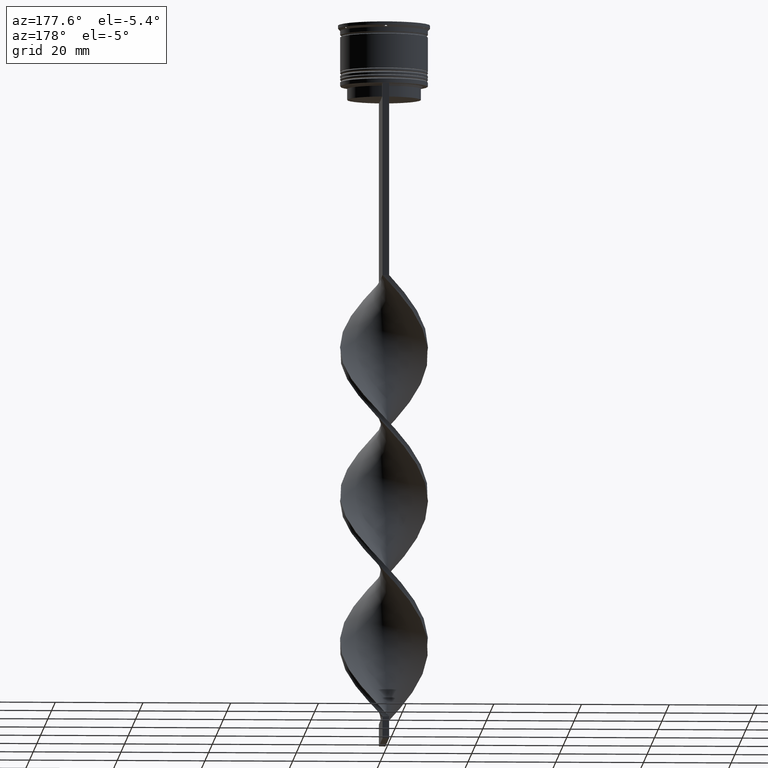
[diagram: clean part render]
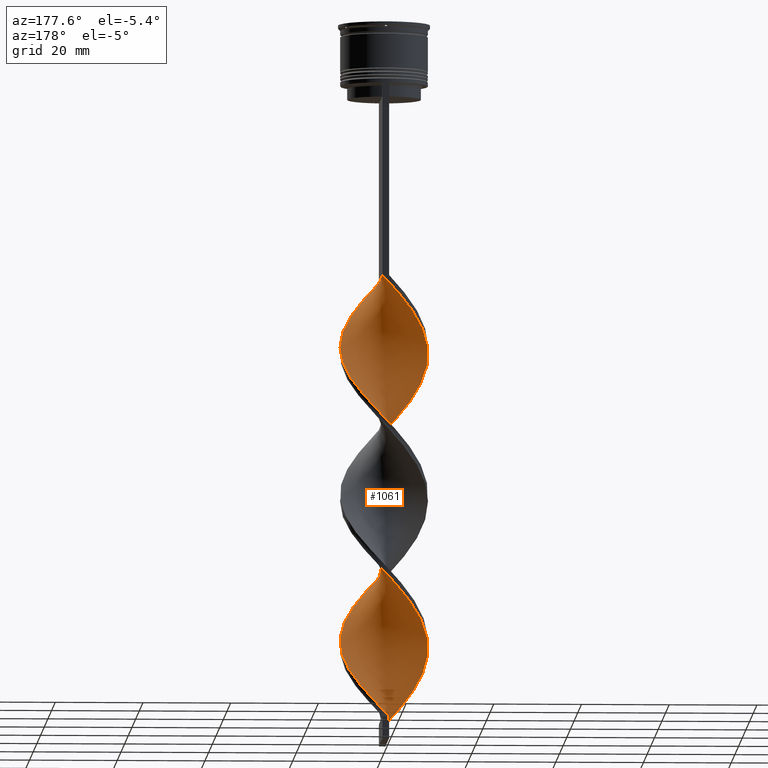
[diagram: same view with one face highlighted and labeled with its STEP entity id]
A machine part, auxiliary view. The second image highlights one B-rep face of the part: STEP entity #1061.
In plain terms, the highlighted face is a freeform B-spline surface patch.
Its self-contained STEP definition (entity closure, byte-faithful):
#10 = CARTESIAN_POINT ( 'NONE',  ( 9.866822606231998805, 1.791176054202738843, -75.95555555555554861 ) ) ;
#18 = CARTESIAN_POINT ( 'NONE',  ( 0.3010423526567601038, -10.07882817644925844, -92.78888888888889142 ) ) ;
#19 = CARTESIAN_POINT ( 'NONE',  ( -7.933296209543087230, -6.133947444480532418, -150.0222222222222115 ) ) ;
#30 = CARTESIAN_POINT ( 'NONE',  ( 3.382207337526056179, 9.440507058732862333, -87.17777777777779136 ) ) ;
#38 = CARTESIAN_POINT ( 'NONE',  ( 3.824412864799132450, 9.329912654898729230, -121.9666666666666544 ) ) ;
#49 = CARTESIAN_POINT ( 'NONE',  ( 9.035254037844390851, -4.350480947161673662, -69.22222222222222854 ) ) ;
#90 = CARTESIAN_POINT ( 'NONE',  ( 3.824412864799132006, -9.329912654898736335, -61.36666666666666003 ) ) ;
#107 = CARTESIAN_POINT ( 'NONE',  ( -10.05508279563516005, 0.7541312096726381364, -74.83333333333334281 ) ) ;
#108 = CARTESIAN_POINT ( 'NONE',  ( 7.933296209543089006, -6.133947444480539524, -66.97777777777777430 ) ) ;
#110 = CARTESIAN_POINT ( 'NONE',  ( 8.578000064855070050, -5.300124413240424381, -135.4333333333333371 ) ) ;
#127 = CARTESIAN_POINT ( 'NONE',  ( 2.812727608727948247, -9.625542239224740726, -127.5777777777777828 ) ) ;
#129 = CARTESIAN_POINT ( 'NONE',  ( -5.680638183180775513, 8.330891533339592314, -97.27777777777779988 ) ) ;
#151 = CARTESIAN_POINT ( 'NONE',  ( -9.678562416828828674, -2.828220898732835220, -110.7444444444444542 ) ) ;
#153 = CARTESIAN_POINT ( 'NONE',  ( 2.389970062597715827, 9.795991374453498324, -155.6333333333333542 ) ) ;
#165 = CARTESIAN_POINT ( 'NONE',  ( -10.02361530113348032, 0.2993932111503379012, -107.3777777777777942 ) ) ;
#167 = CARTESIAN_POINT ( 'NONE',  ( -9.742327908732750785, 2.376877556528111946, -105.1333333333333400 ) ) ;
#175 = CARTESIAN_POINT ( 'NONE',  ( 5.271089777143518340, -8.531008882968830420, -98.40000000000001990 ) ) ;
#181 = CARTESIAN_POINT ( 'NONE',  ( 4.374444612454393422, 9.085022743012228119, -153.3888888888889142 ) ) ;
#183 = CARTESIAN_POINT ( 'NONE',  ( -8.285254037844394404, -5.649519052838325450, -114.1111111111111285 ) ) ;
#215 = CARTESIAN_POINT ( 'NONE',  ( -6.484615268705941737, -7.649331004530116829, -84.93333333333333712 ) ) ;
#232 = CARTESIAN_POINT ( 'NONE',  ( -5.271089777143520116, 8.531008882968830420, -64.73333333333333428 ) ) ;
#250 = CARTESIAN_POINT ( 'NONE',  ( 9.035254037844389075, 4.350480947161663003, -114.1111111111111285 ) ) ;
#251 = CARTESIAN_POINT ( 'NONE',  ( -9.035254037844387298, -4.350480947161667444, -80.44444444444445708 ) ) ;
#272 = CARTESIAN_POINT ( 'NONE',  ( -6.484615268705941737, -7.649331004530116829, -152.2666666666666799 ) ) ;
#273 = CARTESIAN_POINT ( 'NONE',  ( 1.801042352656772927, 9.921171823550741564, -124.2111111111111370 ) ) ;
#290 = CARTESIAN_POINT ( 'NONE',  ( 7.933296209543087230, 6.133947444480531530, -116.3555555555555685 ) ) ;
#291 = CARTESIAN_POINT ( 'NONE',  ( -9.992147806631782814, -1.352917631973294288, -144.4111111111111256 ) ) ;
#293 = CARTESIAN_POINT ( 'NONE',  ( -0.7499999999999988898, 10.00000000000000533, -159.0000000000000000 ) ) ;
#309 = CARTESIAN_POINT ( 'NONE',  ( -0.3010423526567642116, 10.07882817644925666, -126.4555555555555628 ) ) ;
#322 = CARTESIAN_POINT ( 'NONE',  ( 6.167734941832656581, 7.976995022925434498, -83.81111111111111711 ) ) ;
#332 = CARTESIAN_POINT ( 'NONE',  ( -9.678562416828818016, 2.828220898732842770, -139.9222222222222172 ) ) ;
#333 = CARTESIAN_POINT ( 'NONE',  ( -10.05508279563516005, 0.7541312096726382475, -142.1666666666666856 ) ) ;
#342 = CARTESIAN_POINT ( 'NONE',  ( -5.271089777143520116, 8.531008882968830420, -64.73333333333333428 ) ) ;
#345 = CARTESIAN_POINT ( 'NONE',  ( 3.824412864799132006, -9.329912654898734559, -61.36666666666666003 ) ) ;
#360 = CARTESIAN_POINT ( 'NONE',  ( -7.933296209543087230, -6.133947444480532418, -82.68888888888889710 ) ) ;
#362 = CARTESIAN_POINT ( 'NONE',  ( 1.345506207627244155, 9.937409775451381932, -89.42222222222223138 ) ) ;
#379 = CARTESIAN_POINT ( 'NONE',  ( -8.879042417511827878, 4.778703763208837607, -70.34444444444443434 ) ) ;
#381 = CARTESIAN_POINT ( 'NONE',  ( 9.742327908732750785, -2.376877556528111057, -71.46666666666668277 ) ) ;
#392 =( BOUNDED_CURVE ( )  B_SPLINE_CURVE ( 2, ( #3080, #3352, #2452, #345, #1901, #3118, #2774, #3669, #3055, #2731, #49, #2433, #381, #1006, #2755, #1526, #10, #1258, #2473, #970, #2184, #663, #1218, #322, #3647, #1547, #30, #3099, #362, #2855, #1104, #2313, #702, #2278, #1381, #129, #741, #2261, #1925, #3472, #463, #2593, #167, #1401, #3805, #1628, #1341, #724, #3138, #1082, #183, #1064, #779, #3173, #3789, #2534, #2294, #2611, #3489, #3827, #3511, #1320, #406, #1684, #2555, #2003, #3771, #2836, #3212, #110, #1945, #1662, #1048, #2912, #3157, #757, #479, #1962, #1701, #3749, #443, #2875, #1025, #2243, #3456, #424, #1644, #153, #1364, #2575, #1983 ),
 .UNSPECIFIED., .F., .F. ) 
 B_SPLINE_CURVE_WITH_KNOTS ( ( 3, 2, 2, 2, 2, 2, 2, 2, 2, 2, 2, 2, 2, 2, 2, 2, 2, 2, 2, 2, 2, 2, 2, 2, 2, 2, 2, 2, 2, 2, 2, 2, 2, 2, 2, 2, 2, 2, 2, 2, 2, 2, 2, 2, 2, 3 ),
 ( 0.000000000000000000, 0.01666666666666666644, 0.03333333333333333287, 0.05000000000000000971, 0.06666666666666666574, 0.08333333333333332871, 0.1000000000000000194, 0.1166666666666666546, 0.1333333333333333315, 0.1499999999999999944, 0.1666666666666666574, 0.1833333333333333204, 0.2000000000000000389, 0.2166666666666666741, 0.2333333333333333093, 0.2500000000000000000, 0.2666666666666666630, 0.2833333333333333259, 0.2999999999999999889, 0.3166666666666666519, 0.3333333333333333148, 0.3499999999999999223, 0.3666666666666666408, 0.3833333333333333592, 0.4000000000000000777, 0.4166666666666666852, 0.4333333333333333481, 0.4500000000000000111, 0.4666666666666666186, 0.4833333333333333370, 0.5000000000000000000, 0.5166666666666667185, 0.5333333333333333259, 0.5500000000000000444, 0.5666666666666666519, 0.5833333333333333703, 0.5999999999999999778, 0.6166666666666666963, 0.6333333333333333037, 0.6500000000000000222, 0.6666666666666666297, 0.6833333333333332371, 0.6999999999999998446, 0.7166666666666666741, 0.7333333333333332815, 0.7500000000000000000 ),
 .UNSPECIFIED. ) 
 CURVE ( )  GEOMETRIC_REPRESENTATION_ITEM ( )  RATIONAL_B_SPLINE_CURVE ( ( 1.000000000000000000, 0.9945218953682732899, 1.000000000000000000, 0.9945218953682732899, 1.000000000000000000, 0.9945218953682732899, 1.000000000000000000, 0.9945218953682732899, 1.000000000000000000, 0.9945218953682732899, 1.000000000000000000, 0.9945218953682732899, 1.000000000000000000, 0.9945218953682732899, 1.000000000000000000, 0.9945218953682732899, 1.000000000000000000, 0.9945218953682732899, 1.000000000000000000, 0.9945218953682732899, 1.000000000000000000, 0.9945218953682732899, 1.000000000000000000, 0.9945218953682732899, 1.000000000000000000, 0.9945218953682732899, 1.000000000000000000, 0.9945218953682732899, 1.000000000000000000, 0.9945218953682732899, 1.000000000000000000, 0.9945218953682732899, 1.000000000000000000, 0.9945218953682732899, 1.000000000000000000, 0.9945218953682732899, 1.000000000000000000, 0.9945218953682732899, 1.000000000000000000, 0.9945218953682732899, 1.000000000000000000, 0.9945218953682732899, 1.000000000000000000, 0.9945218953682732899, 1.000000000000000000, 0.9945218953682732899, 1.000000000000000000, 0.9945218953682732899, 1.000000000000000000, 0.9945218953682732899, 1.000000000000000000, 0.9945218953682732899, 1.000000000000000000, 0.9945218953682732899, 1.000000000000000000, 0.9945218953682732899, 1.000000000000000000, 0.9945218953682732899, 1.000000000000000000, 0.9945218953682732899, 1.000000000000000000, 0.9945218953682732899, 1.000000000000000000, 0.9945218953682732899, 1.000000000000000000, 0.9945218953682732899, 1.000000000000000000, 0.9945218953682732899, 1.000000000000000000, 0.9945218953682732899, 1.000000000000000000, 0.9945218953682732899, 1.000000000000000000, 0.9945218953682732899, 1.000000000000000000, 0.9945218953682732899, 1.000000000000000000, 0.9945218953682732899, 1.000000000000000000, 0.9945218953682732899, 1.000000000000000000, 0.9945218953682732899, 1.000000000000000000, 0.9945218953682732899, 1.000000000000000000, 0.9945218953682732899, 1.000000000000000000, 0.9945218953682732899, 1.000000000000000000, 0.9945218953682732899, 1.000000000000000000 ) ) 
 REPRESENTATION_ITEM ( '' )  );
#404 = CARTESIAN_POINT ( 'NONE',  ( -7.691465658176951159, -6.520334342467823063, -115.2333333333333343 ) ) ;
#406 = CARTESIAN_POINT ( 'NONE',  ( 2.812727608727948247, -9.625542239224740726, -127.5777777777777828 ) ) ;
#414 = CARTESIAN_POINT ( 'NONE',  ( 0.7500000000000002220, 9.999999999999998224, -58.00000000000000000 ) ) ;
#421 = CARTESIAN_POINT ( 'NONE',  ( -0.3010423526567735375, -10.07882817644926376, -124.2111111111111370 ) ) ;
#424 = CARTESIAN_POINT ( 'NONE',  ( 4.374444612454394310, 9.085022743012228119, -153.3888888888889142 ) ) ;
#441 = CARTESIAN_POINT ( 'NONE',  ( 5.680638183180777290, -8.330891533339590538, -63.61111111111111427 ) ) ;
#443 = CARTESIAN_POINT ( 'NONE',  ( 8.285254037844390851, 5.649519052838329891, -147.7777777777777715 ) ) ;
#451 = CARTESIAN_POINT ( 'NONE',  ( 0.7500000000000001110, -10.00000000000000533, -58.00000000000000000 ) ) ;
#461 = CARTESIAN_POINT ( 'NONE',  ( 0.3010423526567679309, 10.07882817644926376, -90.54444444444445139 ) ) ;
#463 = CARTESIAN_POINT ( 'NONE',  ( -9.035254037844390851, 4.350480947161678102, -102.8888888888888857 ) ) ;
#472 = CARTESIAN_POINT ( 'NONE',  ( -9.678562416828818016, 2.828220898732843214, -72.58888888888890278 ) ) ;
#477 = CARTESIAN_POINT ( 'NONE',  ( 4.752525523989954870, -8.830402094119163436, -62.48888888888889426 ) ) ;
#479 = CARTESIAN_POINT ( 'NONE',  ( 9.866822606231998805, 1.791176054202738843, -143.2888888888889198 ) ) ;
#488 = CARTESIAN_POINT ( 'NONE',  ( 1.345506207627235717, -9.937409775451374827, -93.91111111111111143 ) ) ;
#507 = CARTESIAN_POINT ( 'NONE',  ( -1.801042352656767154, -9.921171823550741564, -90.54444444444445139 ) ) ;
#514 =( BOUNDED_SURFACE ( )  B_SPLINE_SURFACE ( 1, 2, ( 
 ( #637, #1256, #3686, #2530, #1276, #1860, #342, #2833, #964, #2180, #1624, #379, #3097, #2493, #3708, #107, #3393, #660, #1581, #699, #1899, #986, #360, #2791, #1603, #3410, #678, #2814, #1002, #3278, #910, #18, #1493, #3321, #886, #547, #2111, #3043, #1769, #3359, #3635, #2978, #589, #1227, #627, #2150, #865, #1848, #3066, #1808, #250, #3019, #290, #3655, #1187, #2385, #2441, #38, #3893, #1168, #1473, #309, #1532, #929, #2087, #2401, #3298, #2741, #1513, #2684, #1555, #3595, #568, #332, #3613, #2763, #953, #1827, #1245, #2458, #1206, #3911, #1793, #3000, #272, #2130, #3676, #3340, #2700, #2718, #3930 ),
 ( #2420, #607, #2276, #90, #477, #441, #3431, #3210, #108, #3171, #3747, #777, #1298, #3727, #3487, #755, #3509, #1981, #1003, #3454, #2834, #2816, #3192, #2292, #1660, #2892, #1339, #1960, #700, #461, #2001, #2873, #2514, #1682, #2573, #2220, #3787, #739, #1062, #3155, #722, #1923, #2553, #3803, #165, #1023, #1626, #151, #3769, #3136, #1362, #404, #1318, #1379, #2532, #1642, #2591, #2241, #1943, #421, #1080, #2853, #127, #1046, #2259, #3470, #3246, #2632, #1439, #2910, #2095, #1699, #3880, #552, #3267, #2929, #2648, #515, #1157, #1422, #2311, #1759, #3303, #2016, #1399, #181, #2609, #794, #1458, #3584, #2949 ) ),
 .UNSPECIFIED., .F., .F., .F. ) 
 B_SPLINE_SURFACE_WITH_KNOTS ( ( 2, 2 ),
 ( 3, 2, 2, 2, 2, 2, 2, 2, 2, 2, 2, 2, 2, 2, 2, 2, 2, 2, 2, 2, 2, 2, 2, 2, 2, 2, 2, 2, 2, 2, 2, 2, 2, 2, 2, 2, 2, 2, 2, 2, 2, 2, 2, 2, 2, 3 ),
 ( 0.000000000000000000, 1.000000000000000000 ),
 ( 0.000000000000000000, 0.01666666666666666644, 0.03333333333333333287, 0.05000000000000000278, 0.06666666666666666574, 0.08333333333333332871, 0.1000000000000000056, 0.1166666666666666685, 0.1333333333333333315, 0.1499999999999999944, 0.1666666666666666574, 0.1833333333333333204, 0.2000000000000000111, 0.2166666666666666741, 0.2333333333333333370, 0.2500000000000000000, 0.2666666666666666630, 0.2833333333333333259, 0.2999999999999999889, 0.3166666666666666519, 0.3333333333333333148, 0.3499999999999999778, 0.3666666666666666408, 0.3833333333333333592, 0.4000000000000000222, 0.4166666666666666852, 0.4333333333333333481, 0.4500000000000000111, 0.4666666666666666741, 0.4833333333333333370, 0.5000000000000000000, 0.5166666666666667185, 0.5333333333333333259, 0.5500000000000000444, 0.5666666666666666519, 0.5833333333333333703, 0.5999999999999999778, 0.6166666666666666963, 0.6333333333333333037, 0.6500000000000000222, 0.6666666666666666297, 0.6833333333333333481, 0.6999999999999999556, 0.7166666666666666741, 0.7333333333333332815, 0.7500000000000000000 ),
 .UNSPECIFIED. ) 
 GEOMETRIC_REPRESENTATION_ITEM ( )  RATIONAL_B_SPLINE_SURFACE ( (
 ( 1.000000000000000000, 0.9945218953682732899, 1.000000000000000000, 0.9945218953682732899, 1.000000000000000000, 0.9945218953682732899, 1.000000000000000000, 0.9945218953682732899, 1.000000000000000000, 0.9945218953682732899, 1.000000000000000000, 0.9945218953682732899, 1.000000000000000000, 0.9945218953682732899, 1.000000000000000000, 0.9945218953682732899, 1.000000000000000000, 0.9945218953682732899, 1.000000000000000000, 0.9945218953682732899, 1.000000000000000000, 0.9945218953682732899, 1.000000000000000000, 0.9945218953682732899, 1.000000000000000000, 0.9945218953682732899, 1.000000000000000000, 0.9945218953682732899, 1.000000000000000000, 0.9945218953682732899, 1.000000000000000000, 0.9945218953682732899, 1.000000000000000000, 0.9945218953682732899, 1.000000000000000000, 0.9945218953682732899, 1.000000000000000000, 0.9945218953682732899, 1.000000000000000000, 0.9945218953682732899, 1.000000000000000000, 0.9945218953682732899, 1.000000000000000000, 0.9945218953682732899, 1.000000000000000000, 0.9945218953682732899, 1.000000000000000000, 0.9945218953682732899, 1.000000000000000000, 0.9945218953682732899, 1.000000000000000000, 0.9945218953682732899, 1.000000000000000000, 0.9945218953682732899, 1.000000000000000000, 0.9945218953682732899, 1.000000000000000000, 0.9945218953682732899, 1.000000000000000000, 0.9945218953682732899, 1.000000000000000000, 0.9945218953682732899, 1.000000000000000000, 0.9945218953682732899, 1.000000000000000000, 0.9945218953682732899, 1.000000000000000000, 0.9945218953682732899, 1.000000000000000000, 0.9945218953682732899, 1.000000000000000000, 0.9945218953682732899, 1.000000000000000000, 0.9945218953682732899, 1.000000000000000000, 0.9945218953682732899, 1.000000000000000000, 0.9945218953682732899, 1.000000000000000000, 0.9945218953682732899, 1.000000000000000000, 0.9945218953682732899, 1.000000000000000000, 0.9945218953682732899, 1.000000000000000000, 0.9945218953682732899, 1.000000000000000000, 0.9945218953682732899, 1.000000000000000000, 0.9945218953682732899, 1.000000000000000000),
 ( 1.000000000000000000, 0.9945218953682732899, 1.000000000000000000, 0.9945218953682732899, 1.000000000000000000, 0.9945218953682732899, 1.000000000000000000, 0.9945218953682732899, 1.000000000000000000, 0.9945218953682732899, 1.000000000000000000, 0.9945218953682732899, 1.000000000000000000, 0.9945218953682732899, 1.000000000000000000, 0.9945218953682732899, 1.000000000000000000, 0.9945218953682732899, 1.000000000000000000, 0.9945218953682732899, 1.000000000000000000, 0.9945218953682732899, 1.000000000000000000, 0.9945218953682732899, 1.000000000000000000, 0.9945218953682732899, 1.000000000000000000, 0.9945218953682732899, 1.000000000000000000, 0.9945218953682732899, 1.000000000000000000, 0.9945218953682732899, 1.000000000000000000, 0.9945218953682732899, 1.000000000000000000, 0.9945218953682732899, 1.000000000000000000, 0.9945218953682732899, 1.000000000000000000, 0.9945218953682732899, 1.000000000000000000, 0.9945218953682732899, 1.000000000000000000, 0.9945218953682732899, 1.000000000000000000, 0.9945218953682732899, 1.000000000000000000, 0.9945218953682732899, 1.000000000000000000, 0.9945218953682732899, 1.000000000000000000, 0.9945218953682732899, 1.000000000000000000, 0.9945218953682732899, 1.000000000000000000, 0.9945218953682732899, 1.000000000000000000, 0.9945218953682732899, 1.000000000000000000, 0.9945218953682732899, 1.000000000000000000, 0.9945218953682732899, 1.000000000000000000, 0.9945218953682732899, 1.000000000000000000, 0.9945218953682732899, 1.000000000000000000, 0.9945218953682732899, 1.000000000000000000, 0.9945218953682732899, 1.000000000000000000, 0.9945218953682732899, 1.000000000000000000, 0.9945218953682732899, 1.000000000000000000, 0.9945218953682732899, 1.000000000000000000, 0.9945218953682732899, 1.000000000000000000, 0.9945218953682732899, 1.000000000000000000, 0.9945218953682732899, 1.000000000000000000, 0.9945218953682732899, 1.000000000000000000, 0.9945218953682732899, 1.000000000000000000, 0.9945218953682732899, 1.000000000000000000, 0.9945218953682732899, 1.000000000000000000) ) ) 
 REPRESENTATION_ITEM ( '' )  SURFACE ( )  );
#515 = CARTESIAN_POINT ( 'NONE',  ( 9.678562416828826898, 2.828220898732840549, -144.4111111111111541 ) ) ;
#547 = CARTESIAN_POINT ( 'NONE',  ( 4.374444612454384540, -9.085022743012224566, -97.27777777777778567 ) ) ;
#548 = CARTESIAN_POINT ( 'NONE',  ( -5.680638183180776402, -8.330891533339583432, -86.05555555555557135 ) ) ;
#552 = CARTESIAN_POINT ( 'NONE',  ( 9.992147806631789919, -1.352917631973299173, -139.9222222222222172 ) ) ;
#568 = CARTESIAN_POINT ( 'NONE',  ( -9.278802417170323835, 3.803462330970839300, -138.8000000000000114 ) ) ;
#589 = CARTESIAN_POINT ( 'NONE',  ( 9.278802417170323835, -3.803462330970840188, -105.1333333333333400 ) ) ;
#590 = CARTESIAN_POINT ( 'NONE',  ( -9.492508010833709875, -3.400837481082919389, -146.6555555555555657 ) ) ;
#607 = CARTESIAN_POINT ( 'NONE',  ( 1.801042352656765155, -9.921171823550746893, -59.12222222222222712 ) ) ;
#608 = CARTESIAN_POINT ( 'NONE',  ( -9.035254037844387298, -4.350480947161667444, -147.7777777777777715 ) ) ;
#627 = CARTESIAN_POINT ( 'NONE',  ( 9.866822606231989923, -1.791176054202747281, -107.3777777777777942 ) ) ;
#628 = CARTESIAN_POINT ( 'NONE',  ( -3.382207337526049518, 9.440507058732857004, -129.8222222222222229 ) ) ;
#637 = CARTESIAN_POINT ( 'NONE',  ( 0.7500000000000001110, 9.999999999999998224, -58.00000000000000000 ) ) ;
#660 = CARTESIAN_POINT ( 'NONE',  ( -9.992147806631782814, -1.352917631973294510, -77.07777777777778283 ) ) ;
#663 = CARTESIAN_POINT ( 'NONE',  ( 7.691465658176951159, 6.520334342467823951, -81.56666666666666288 ) ) ;
#678 = CARTESIAN_POINT ( 'NONE',  ( -4.752525523989953982, -8.830402094119154555, -87.17777777777779136 ) ) ;
#699 = CARTESIAN_POINT ( 'NONE',  ( -9.492508010833708099, -3.400837481082919389, -79.32222222222222285 ) ) ;
#700 = CARTESIAN_POINT ( 'NONE',  ( 1.345506207627244155, 9.937409775451381932, -89.42222222222223138 ) ) ;
#702 = CARTESIAN_POINT ( 'NONE',  ( -2.812727608727946027, 9.625542239224740726, -93.91111111111111143 ) ) ;
#709 = EDGE_CURVE ( 'NONE', #1024, #2038, #3188, .T. ) ;
#722 = CARTESIAN_POINT ( 'NONE',  ( -9.035254037844390851, 4.350480947161678102, -102.8888888888888857 ) ) ;
#724 = CARTESIAN_POINT ( 'NONE',  ( -9.678562416828830450, -2.828220898732835220, -110.7444444444444542 ) ) ;
#739 = CARTESIAN_POINT ( 'NONE',  ( -7.288592354231109738, 6.967770475720659107, -99.52222222222223991 ) ) ;
#741 = CARTESIAN_POINT ( 'NONE',  ( -6.484615268705943514, 7.649331004530123934, -98.40000000000001990 ) ) ;
#755 = CARTESIAN_POINT ( 'NONE',  ( 10.05508279563516716, 0.7541312096726368042, -74.83333333333334281 ) ) ;
#757 = CARTESIAN_POINT ( 'NONE',  ( 10.05508279563516716, 0.7541312096726368042, -142.1666666666666856 ) ) ;
#770 = CARTESIAN_POINT ( 'NONE',  ( -0.3010423526567641006, 10.07882817644925666, -59.12222222222222712 ) ) ;
#777 = CARTESIAN_POINT ( 'NONE',  ( 9.492508010833713428, -3.400837481082924718, -70.34444444444443434 ) ) ;
#779 = CARTESIAN_POINT ( 'NONE',  ( -6.929600300004805646, -7.248664682696627892, -116.3555555555555685 ) ) ;
#789 = CARTESIAN_POINT ( 'NONE',  ( 9.992147806631784590, 1.352917631973288071, -110.7444444444444542 ) ) ;
#794 = CARTESIAN_POINT ( 'NONE',  ( 2.389970062597715827, 9.795991374453498324, -155.6333333333333258 ) ) ;
#828 = CARTESIAN_POINT ( 'NONE',  ( 7.933296209543087230, 6.133947444480531530, -116.3555555555555685 ) ) ;
#849 = CARTESIAN_POINT ( 'NONE',  ( -8.285254037844383745, 5.649519052838329891, -69.22222222222222854 ) ) ;
#865 = CARTESIAN_POINT ( 'NONE',  ( 10.02361530113347143, 0.2993932111503245785, -109.6222222222222342 ) ) ;
#866 = CARTESIAN_POINT ( 'NONE',  ( -8.285254037844383745, 5.649519052838329891, -136.5555555555555713 ) ) ;
#886 = CARTESIAN_POINT ( 'NONE',  ( 3.382207337526045965, -9.440507058732858781, -96.15555555555556566 ) ) ;
#888 = CARTESIAN_POINT ( 'NONE',  ( -4.374444612454386316, 9.085022743012224566, -130.9444444444444571 ) ) ;
#910 = CARTESIAN_POINT ( 'NONE',  ( -0.7500000000000013323, -9.999999999999998224, -91.66666666666667140 ) ) ;
#911 = CARTESIAN_POINT ( 'NONE',  ( -1.345506207627238382, 9.937409775451374827, -127.5777777777777828 ) ) ;
#929 = CARTESIAN_POINT ( 'NONE',  ( -2.389970062597713163, 9.795991374453491218, -128.6999999999999886 ) ) ;
#930 = CARTESIAN_POINT ( 'NONE',  ( -9.866822606231991699, 1.791176054202741952, -141.0444444444444514 ) ) ;
#953 = CARTESIAN_POINT ( 'NONE',  ( -10.02361530113347143, -0.2993932111503280202, -143.2888888888889198 ) ) ;
#964 = CARTESIAN_POINT ( 'NONE',  ( -6.929600300004796765, 7.248664682696627892, -66.97777777777777430 ) ) ;
#970 = CARTESIAN_POINT ( 'NONE',  ( 8.879042417511834984, 4.778703763208838495, -79.32222222222222285 ) ) ;
#986 = CARTESIAN_POINT ( 'NONE',  ( -8.578000064855064721, -5.300124413240419052, -81.56666666666664867 ) ) ;
#1002 = CARTESIAN_POINT ( 'NONE',  ( -2.812727608727951356, -9.625542239224735397, -89.42222222222223138 ) ) ;
#1003 = CARTESIAN_POINT ( 'NONE',  ( 9.278802417170330941, 3.803462330970840632, -78.20000000000000284 ) ) ;
#1006 = CARTESIAN_POINT ( 'NONE',  ( 9.992147806631788143, -1.352917631973299173, -72.58888888888890278 ) ) ;
#1022 = CARTESIAN_POINT ( 'NONE',  ( -0.7500000000000014433, -9.999999999999998224, -159.0000000000000000 ) ) ;
#1023 = CARTESIAN_POINT ( 'NONE',  ( -10.05508279563516716, -0.7541312096726356939, -108.5000000000000000 ) ) ;
#1024 = VERTEX_POINT ( 'NONE', #1022 ) ;
#1025 = CARTESIAN_POINT ( 'NONE',  ( 6.929600300004804758, 7.248664682696628780, -150.0222222222222115 ) ) ;
#1046 = CARTESIAN_POINT ( 'NONE',  ( 3.824412864799132006, -9.329912654898736335, -128.6999999999999886 ) ) ;
#1048 = CARTESIAN_POINT ( 'NONE',  ( 9.742327908732750785, -2.376877556528111057, -138.8000000000000114 ) ) ;
#1061 = ADVANCED_FACE ( 'NONE', ( #1315 ), #514, .T. ) ;
#1062 = CARTESIAN_POINT ( 'NONE',  ( -7.933296209543089006, 6.133947444480543076, -100.6444444444444599 ) ) ;
#1064 = CARTESIAN_POINT ( 'NONE',  ( -7.691465658176951159, -6.520334342467823063, -115.2333333333333343 ) ) ;
#1080 = CARTESIAN_POINT ( 'NONE',  ( 0.7500000000000001110, -10.00000000000000533, -125.3333333333333570 ) ) ;
#1082 = CARTESIAN_POINT ( 'NONE',  ( -8.879042417511836760, -4.778703763208834943, -112.9888888888888943 ) ) ;
#1083 = ORIENTED_EDGE ( 'NONE', *, *, #709, .F. ) ;
#1094 = CARTESIAN_POINT ( 'NONE',  ( 2.389970062597711831, -9.795991374453492995, -95.03333333333331723 ) ) ;
#1104 = CARTESIAN_POINT ( 'NONE',  ( -0.7499999999999988898, 10.00000000000000533, -91.66666666666667140 ) ) ;
#1113 = CARTESIAN_POINT ( 'NONE',  ( -9.278802417170323835, 3.803462330970839744, -71.46666666666668277 ) ) ;
#1114 = ORIENTED_EDGE ( 'NONE', *, *, #1748, .F. ) ;
#1131 = CARTESIAN_POINT ( 'NONE',  ( 8.578000064855064721, 5.300124413240417276, -115.2333333333333343 ) ) ;
#1149 = CARTESIAN_POINT ( 'NONE',  ( -6.929600300004796765, 7.248664682696627892, -66.97777777777777430 ) ) ;
#1157 = CARTESIAN_POINT ( 'NONE',  ( 9.278802417170330941, 3.803462330970840632, -145.5333333333333599 ) ) ;
#1168 = CARTESIAN_POINT ( 'NONE',  ( 1.801042352656772705, 9.921171823550739788, -124.2111111111111370 ) ) ;
#1169 = CARTESIAN_POINT ( 'NONE',  ( -7.288592354231108850, -6.967770475720649337, -151.1444444444444457 ) ) ;
#1187 = CARTESIAN_POINT ( 'NONE',  ( 6.484615268705942626, 7.649331004530116829, -118.6000000000000085 ) ) ;
#1188 = CARTESIAN_POINT ( 'NONE',  ( -4.752525523989953982, -8.830402094119154555, -154.5111111111111200 ) ) ;
#1206 = CARTESIAN_POINT ( 'NONE',  ( -9.035254037844387298, -4.350480947161667444, -147.7777777777777715 ) ) ;
#1208 = CARTESIAN_POINT ( 'NONE',  ( -9.742327908732745456, -2.376877556528107505, -145.5333333333333599 ) ) ;
#1218 = CARTESIAN_POINT ( 'NONE',  ( 6.929600300004804758, 7.248664682696628780, -82.68888888888889710 ) ) ;
#1227 = CARTESIAN_POINT ( 'NONE',  ( 9.678562416828818016, -2.828220898732845878, -106.2555555555555742 ) ) ;
#1228 = CARTESIAN_POINT ( 'NONE',  ( -6.167734941832649476, 7.976995022925432721, -133.1888888888889255 ) ) ;
#1245 = CARTESIAN_POINT ( 'NONE',  ( -9.742327908732745456, -2.376877556528107949, -145.5333333333333599 ) ) ;
#1246 = CARTESIAN_POINT ( 'NONE',  ( 5.680638183180778178, 8.330891533339583432, -119.7222222222222143 ) ) ;
#1256 = CARTESIAN_POINT ( 'NONE',  ( -0.3010423526567642116, 10.07882817644925666, -59.12222222222222712 ) ) ;
#1258 = CARTESIAN_POINT ( 'NONE',  ( 9.678562416828828674, 2.828220898732840993, -77.07777777777778283 ) ) ;
#1276 = CARTESIAN_POINT ( 'NONE',  ( -3.382207337526049962, 9.440507058732857004, -62.48888888888889426 ) ) ;
#1298 = CARTESIAN_POINT ( 'NONE',  ( 9.742327908732750785, -2.376877556528111057, -71.46666666666668277 ) ) ;
#1315 = FACE_OUTER_BOUND ( 'NONE', #3838, .T. ) ;
#1318 = CARTESIAN_POINT ( 'NONE',  ( -6.929600300004805646, -7.248664682696627892, -116.3555555555555685 ) ) ;
#1320 = CARTESIAN_POINT ( 'NONE',  ( 1.801042352656765155, -9.921171823550748670, -126.4555555555555770 ) ) ;
#1339 = CARTESIAN_POINT ( 'NONE',  ( 3.382207337526056179, 9.440507058732862333, -87.17777777777779136 ) ) ;
#1341 = CARTESIAN_POINT ( 'NONE',  ( -9.866822606231998805, -1.791176054202735513, -109.6222222222222342 ) ) ;
#1362 = CARTESIAN_POINT ( 'NONE',  ( -8.285254037844394404, -5.649519052838325450, -114.1111111111111285 ) ) ;
#1364 = CARTESIAN_POINT ( 'NONE',  ( 1.345506207627244155, 9.937409775451381932, -156.7555555555555600 ) ) ;
#1379 = CARTESIAN_POINT ( 'NONE',  ( -6.167734941832660134, -7.976995022925430945, -117.4777777777777885 ) ) ;
#1381 = CARTESIAN_POINT ( 'NONE',  ( -4.752525523989951317, 8.830402094119165213, -96.15555555555556566 ) ) ;
#1393 = CARTESIAN_POINT ( 'NONE',  ( -9.742327908732745456, -2.376877556528107505, -78.20000000000000284 ) ) ;
#1399 = CARTESIAN_POINT ( 'NONE',  ( 5.271089777143525446, 8.531008882968833973, -152.2666666666666799 ) ) ;
#1401 = CARTESIAN_POINT ( 'NONE',  ( -9.992147806631788143, 1.352917631973302282, -106.2555555555555742 ) ) ;
#1414 = CARTESIAN_POINT ( 'NONE',  ( -9.992147806631782814, -1.352917631973294288, -77.07777777777778283 ) ) ;
#1422 = CARTESIAN_POINT ( 'NONE',  ( 8.879042417511834984, 4.778703763208838495, -146.6555555555555657 ) ) ;
#1439 = CARTESIAN_POINT ( 'NONE',  ( 7.933296209543089006, -6.133947444480539524, -134.3111111111111313 ) ) ;
#1453 = CARTESIAN_POINT ( 'NONE',  ( -9.492508010833709875, -3.400837481082919389, -79.32222222222222285 ) ) ;
#1458 = CARTESIAN_POINT ( 'NONE',  ( 1.345506207627244155, 9.937409775451381932, -156.7555555555555600 ) ) ;
#1473 = CARTESIAN_POINT ( 'NONE',  ( 0.7500000000000001110, 9.999999999999998224, -125.3333333333333570 ) ) ;
#1474 = CARTESIAN_POINT ( 'NONE',  ( 0.3010423526567599928, -10.07882817644925844, -92.78888888888889142 ) ) ;
#1493 = CARTESIAN_POINT ( 'NONE',  ( 1.345506207627235939, -9.937409775451374827, -93.91111111111111143 ) ) ;
#1494 = CARTESIAN_POINT ( 'NONE',  ( -7.691465658176945830, 6.520334342467821287, -135.4333333333333371 ) ) ;
#1513 = CARTESIAN_POINT ( 'NONE',  ( -6.929600300004796765, 7.248664682696627892, -134.3111111111111313 ) ) ;
#1514 = CARTESIAN_POINT ( 'NONE',  ( -5.680638183180776402, -8.330891533339583432, -153.3888888888889142 ) ) ;
#1526 = CARTESIAN_POINT ( 'NONE',  ( 10.05508279563516716, 0.7541312096726368042, -74.83333333333332860 ) ) ;
#1532 = CARTESIAN_POINT ( 'NONE',  ( -1.345506207627238604, 9.937409775451374827, -127.5777777777777828 ) ) ;
#1547 = CARTESIAN_POINT ( 'NONE',  ( 4.374444612454394310, 9.085022743012228119, -86.05555555555557135 ) ) ;
#1555 = CARTESIAN_POINT ( 'NONE',  ( -8.285254037844383745, 5.649519052838329891, -136.5555555555555713 ) ) ;
#1556 = CARTESIAN_POINT ( 'NONE',  ( -0.7500000000000014433, -9.999999999999998224, -159.0000000000000000 ) ) ;
#1573 = CARTESIAN_POINT ( 'NONE',  ( -9.278802417170323835, 3.803462330970839744, -138.8000000000000114 ) ) ;
#1581 = CARTESIAN_POINT ( 'NONE',  ( -9.742327908732745456, -2.376877556528107949, -78.20000000000000284 ) ) ;
#1588 = EDGE_CURVE ( 'NONE', #3740, #1024, #1897, .T. ) ;
#1603 = CARTESIAN_POINT ( 'NONE',  ( -6.484615268705941737, -7.649331004530116829, -84.93333333333333712 ) ) ;
#1624 = CARTESIAN_POINT ( 'NONE',  ( -8.285254037844383745, 5.649519052838329891, -69.22222222222222854 ) ) ;
#1626 = CARTESIAN_POINT ( 'NONE',  ( -9.866822606231998805, -1.791176054202735513, -109.6222222222222342 ) ) ;
#1628 = CARTESIAN_POINT ( 'NONE',  ( -10.05508279563516716, -0.7541312096726355829, -108.5000000000000000 ) ) ;
#1642 = CARTESIAN_POINT ( 'NONE',  ( -4.374444612454396086, -9.085022743012226343, -119.7222222222222143 ) ) ;
#1644 = CARTESIAN_POINT ( 'NONE',  ( 3.382207337526056179, 9.440507058732862333, -154.5111111111111200 ) ) ;
#1660 = CARTESIAN_POINT ( 'NONE',  ( 5.271089777143525446, 8.531008882968833973, -84.93333333333333712 ) ) ;
#1662 = CARTESIAN_POINT ( 'NONE',  ( 9.492508010833715204, -3.400837481082924718, -137.6777777777777487 ) ) ;
#1682 = CARTESIAN_POINT ( 'NONE',  ( -3.824412864799130674, 9.329912654898738111, -95.03333333333331723 ) ) ;
#1684 = CARTESIAN_POINT ( 'NONE',  ( 3.824412864799132006, -9.329912654898734559, -128.7000000000000171 ) ) ;
#1694 = CARTESIAN_POINT ( 'NONE',  ( -7.933296209543087230, -6.133947444480532418, -82.68888888888889710 ) ) ;
#1695 = VERTEX_POINT ( 'NONE', #451 ) ;
#1699 = CARTESIAN_POINT ( 'NONE',  ( 9.492508010833713428, -3.400837481082924718, -137.6777777777777487 ) ) ;
#1701 = CARTESIAN_POINT ( 'NONE',  ( 9.278802417170330941, 3.803462330970840632, -145.5333333333333599 ) ) ;
#1712 = CARTESIAN_POINT ( 'NONE',  ( 9.492508010833711651, 3.400837481082915392, -112.9888888888888943 ) ) ;
#1735 = CARTESIAN_POINT ( 'NONE',  ( 4.374444612454384540, -9.085022743012224566, -97.27777777777779988 ) ) ;
#1748 = EDGE_CURVE ( 'NONE', #1695, #3740, #1969, .T. ) ;
#1759 = CARTESIAN_POINT ( 'NONE',  ( 7.691465658176951159, 6.520334342467823951, -148.8999999999999488 ) ) ;
#1769 = CARTESIAN_POINT ( 'NONE',  ( 6.929600300004795876, -7.248664682696628780, -100.6444444444444599 ) ) ;
#1770 = CARTESIAN_POINT ( 'NONE',  ( -0.7500000000000014433, -9.999999999999998224, -91.66666666666667140 ) ) ;
#1793 = CARTESIAN_POINT ( 'NONE',  ( -7.933296209543087230, -6.133947444480532418, -150.0222222222222115 ) ) ;
#1794 = CARTESIAN_POINT ( 'NONE',  ( -5.271089777143520116, 8.531008882968830420, -132.0666666666666629 ) ) ;
#1808 = CARTESIAN_POINT ( 'NONE',  ( 9.492508010833709875, 3.400837481082915836, -112.9888888888888943 ) ) ;
#1809 = CARTESIAN_POINT ( 'NONE',  ( -3.824412864799130674, -9.329912654898727453, -155.6333333333333542 ) ) ;
#1827 = CARTESIAN_POINT ( 'NONE',  ( -9.992147806631782814, -1.352917631973294510, -144.4111111111111541 ) ) ;
#1848 = CARTESIAN_POINT ( 'NONE',  ( 9.992147806631784590, 1.352917631973288515, -110.7444444444444542 ) ) ;
#1850 = CARTESIAN_POINT ( 'NONE',  ( -1.801042352656767154, -9.921171823550741564, -157.8777777777777942 ) ) ;
#1860 = CARTESIAN_POINT ( 'NONE',  ( -4.374444612454386316, 9.085022743012224566, -63.61111111111111427 ) ) ;
#1897 =( BOUNDED_CURVE ( )  B_SPLINE_CURVE ( 2, ( #2051, #770, #2366, #2643, #1996, #3538, #232, #3579, #1149, #3818, #849, #2068, #1113, #472, #2031, #3239, #2663, #1414, #1393, #1453, #251, #3262, #1694, #3873, #215, #548, #2625, #2922, #2903, #507, #1770, #1474, #488, #1094, #2344, #1735, #175, #3558, #2943, #2603, #3856, #2286, #2326, #2685, #3894, #2306, #3522, #789, #2011, #1712, #3837, #1131, #828, #2421, #2459, #1246, #3322, #3382, #3067, #273, #3931, #2402, #911, #2719, #628, #888, #1794, #1228, #2782, #1494, #866, #2386, #1573, #2701, #930, #333, #3636, #291, #1208, #590, #608, #3912, #19, #1169, #2442, #1514, #1188, #1809, #2131, #1850, #1556 ),
 .UNSPECIFIED., .F., .F. ) 
 B_SPLINE_CURVE_WITH_KNOTS ( ( 3, 2, 2, 2, 2, 2, 2, 2, 2, 2, 2, 2, 2, 2, 2, 2, 2, 2, 2, 2, 2, 2, 2, 2, 2, 2, 2, 2, 2, 2, 2, 2, 2, 2, 2, 2, 2, 2, 2, 2, 2, 2, 2, 2, 2, 3 ),
 ( 0.000000000000000000, 0.01666666666666666644, 0.03333333333333333287, 0.05000000000000000971, 0.06666666666666666574, 0.08333333333333332871, 0.1000000000000000194, 0.1166666666666666546, 0.1333333333333333315, 0.1499999999999999944, 0.1666666666666666574, 0.1833333333333333204, 0.2000000000000000389, 0.2166666666666666741, 0.2333333333333333093, 0.2500000000000000000, 0.2666666666666666630, 0.2833333333333333259, 0.2999999999999999889, 0.3166666666666666519, 0.3333333333333333148, 0.3499999999999999223, 0.3666666666666666408, 0.3833333333333333592, 0.4000000000000000777, 0.4166666666666666852, 0.4333333333333333481, 0.4500000000000000111, 0.4666666666666666186, 0.4833333333333333370, 0.5000000000000000000, 0.5166666666666667185, 0.5333333333333333259, 0.5500000000000000444, 0.5666666666666666519, 0.5833333333333333703, 0.5999999999999999778, 0.6166666666666666963, 0.6333333333333333037, 0.6500000000000000222, 0.6666666666666666297, 0.6833333333333332371, 0.6999999999999998446, 0.7166666666666666741, 0.7333333333333332815, 0.7500000000000000000 ),
 .UNSPECIFIED. ) 
 CURVE ( )  GEOMETRIC_REPRESENTATION_ITEM ( )  RATIONAL_B_SPLINE_CURVE ( ( 1.000000000000000000, 0.9945218953682732899, 1.000000000000000000, 0.9945218953682732899, 1.000000000000000000, 0.9945218953682732899, 1.000000000000000000, 0.9945218953682732899, 1.000000000000000000, 0.9945218953682732899, 1.000000000000000000, 0.9945218953682732899, 1.000000000000000000, 0.9945218953682732899, 1.000000000000000000, 0.9945218953682732899, 1.000000000000000000, 0.9945218953682732899, 1.000000000000000000, 0.9945218953682732899, 1.000000000000000000, 0.9945218953682732899, 1.000000000000000000, 0.9945218953682732899, 1.000000000000000000, 0.9945218953682732899, 1.000000000000000000, 0.9945218953682732899, 1.000000000000000000, 0.9945218953682732899, 1.000000000000000000, 0.9945218953682732899, 1.000000000000000000, 0.9945218953682732899, 1.000000000000000000, 0.9945218953682732899, 1.000000000000000000, 0.9945218953682732899, 1.000000000000000000, 0.9945218953682732899, 1.000000000000000000, 0.9945218953682732899, 1.000000000000000000, 0.9945218953682732899, 1.000000000000000000, 0.9945218953682732899, 1.000000000000000000, 0.9945218953682732899, 1.000000000000000000, 0.9945218953682732899, 1.000000000000000000, 0.9945218953682732899, 1.000000000000000000, 0.9945218953682732899, 1.000000000000000000, 0.9945218953682732899, 1.000000000000000000, 0.9945218953682732899, 1.000000000000000000, 0.9945218953682732899, 1.000000000000000000, 0.9945218953682732899, 1.000000000000000000, 0.9945218953682732899, 1.000000000000000000, 0.9945218953682732899, 1.000000000000000000, 0.9945218953682732899, 1.000000000000000000, 0.9945218953682732899, 1.000000000000000000, 0.9945218953682732899, 1.000000000000000000, 0.9945218953682732899, 1.000000000000000000, 0.9945218953682732899, 1.000000000000000000, 0.9945218953682732899, 1.000000000000000000, 0.9945218953682732899, 1.000000000000000000, 0.9945218953682732899, 1.000000000000000000, 0.9945218953682732899, 1.000000000000000000, 0.9945218953682732899, 1.000000000000000000, 0.9945218953682732899, 1.000000000000000000, 0.9945218953682732899, 1.000000000000000000 ) ) 
 REPRESENTATION_ITEM ( '' )  );
#1899 = CARTESIAN_POINT ( 'NONE',  ( -9.035254037844387298, -4.350480947161667444, -80.44444444444445708 ) ) ;
#1901 = CARTESIAN_POINT ( 'NONE',  ( 4.752525523989954870, -8.830402094119163436, -62.48888888888889426 ) ) ;
#1923 = CARTESIAN_POINT ( 'NONE',  ( -9.492508010833709875, 3.400837481082930491, -104.0111111111111200 ) ) ;
#1925 = CARTESIAN_POINT ( 'NONE',  ( -7.933296209543089006, 6.133947444480543076, -100.6444444444444599 ) ) ;
#1943 = CARTESIAN_POINT ( 'NONE',  ( -1.345506207627245487, -9.937409775451381932, -123.0888888888888886 ) ) ;
#1945 = CARTESIAN_POINT ( 'NONE',  ( 9.035254037844390851, -4.350480947161673662, -136.5555555555555713 ) ) ;
#1960 = CARTESIAN_POINT ( 'NONE',  ( 2.389970062597715827, 9.795991374453498324, -88.29999999999998295 ) ) ;
#1962 = CARTESIAN_POINT ( 'NONE',  ( 9.678562416828828674, 2.828220898732840993, -144.4111111111111256 ) ) ;
#1969 = LINE ( 'NONE', #2504, #3441 ) ;
#1981 = CARTESIAN_POINT ( 'NONE',  ( 9.678562416828826898, 2.828220898732840549, -77.07777777777778283 ) ) ;
#1983 = CARTESIAN_POINT ( 'NONE',  ( -0.7499999999999988898, 10.00000000000000533, -159.0000000000000000 ) ) ;
#1996 = CARTESIAN_POINT ( 'NONE',  ( -3.382207337526049518, 9.440507058732857004, -62.48888888888889426 ) ) ;
#2001 = CARTESIAN_POINT ( 'NONE',  ( -0.7499999999999988898, 10.00000000000000533, -91.66666666666667140 ) ) ;
#2003 = CARTESIAN_POINT ( 'NONE',  ( 5.680638183180777290, -8.330891533339590538, -130.9444444444444571 ) ) ;
#2011 = CARTESIAN_POINT ( 'NONE',  ( 9.742327908732745456, 2.376877556528106172, -111.8666666666666742 ) ) ;
#2016 = CARTESIAN_POINT ( 'NONE',  ( 6.167734941832655693, 7.976995022925434498, -151.1444444444444457 ) ) ;
#2031 = CARTESIAN_POINT ( 'NONE',  ( -9.866822606231991699, 1.791176054202741952, -73.71111111111112280 ) ) ;
#2038 = VERTEX_POINT ( 'NONE', #2818 ) ;
#2051 = CARTESIAN_POINT ( 'NONE',  ( 0.7500000000000002220, 9.999999999999998224, -58.00000000000000000 ) ) ;
#2068 = CARTESIAN_POINT ( 'NONE',  ( -8.879042417511827878, 4.778703763208838495, -70.34444444444444855 ) ) ;
#2087 = CARTESIAN_POINT ( 'NONE',  ( -3.382207337526049962, 9.440507058732857004, -129.8222222222222229 ) ) ;
#2094 = EDGE_CURVE ( 'NONE', #1695, #2038, #392, .T. ) ;
#2095 = CARTESIAN_POINT ( 'NONE',  ( 9.035254037844390851, -4.350480947161673662, -136.5555555555555713 ) ) ;
#2111 = CARTESIAN_POINT ( 'NONE',  ( 5.271089777143518340, -8.531008882968828644, -98.40000000000001990 ) ) ;
#2130 = CARTESIAN_POINT ( 'NONE',  ( -5.680638183180776402, -8.330891533339581656, -153.3888888888889142 ) ) ;
#2131 = CARTESIAN_POINT ( 'NONE',  ( -2.812727608727951356, -9.625542239224735397, -156.7555555555555600 ) ) ;
#2150 = CARTESIAN_POINT ( 'NONE',  ( 10.05508279563516005, -0.7541312096726393577, -108.5000000000000000 ) ) ;
#2180 = CARTESIAN_POINT ( 'NONE',  ( -7.691465658176945830, 6.520334342467821287, -68.10000000000002274 ) ) ;
#2184 = CARTESIAN_POINT ( 'NONE',  ( 8.285254037844390851, 5.649519052838329891, -80.44444444444445708 ) ) ;
#2220 = CARTESIAN_POINT ( 'NONE',  ( -5.680638183180775513, 8.330891533339592314, -97.27777777777778567 ) ) ;
#2241 = CARTESIAN_POINT ( 'NONE',  ( -2.389970062597717604, -9.795991374453498324, -121.9666666666666544 ) ) ;
#2243 = CARTESIAN_POINT ( 'NONE',  ( 6.167734941832656581, 7.976995022925434498, -151.1444444444444457 ) ) ;
#2259 = CARTESIAN_POINT ( 'NONE',  ( 4.752525523989954870, -8.830402094119163436, -129.8222222222222229 ) ) ;
#2261 = CARTESIAN_POINT ( 'NONE',  ( -7.288592354231109738, 6.967770475720659107, -99.52222222222223991 ) ) ;
#2276 = CARTESIAN_POINT ( 'NONE',  ( 2.812727608727948247, -9.625542239224740726, -60.24444444444444713 ) ) ;
#2278 = CARTESIAN_POINT ( 'NONE',  ( -3.824412864799130674, 9.329912654898736335, -95.03333333333331723 ) ) ;
#2286 = CARTESIAN_POINT ( 'NONE',  ( 8.879042417511824326, -4.778703763208842936, -104.0111111111111057 ) ) ;
#2292 = CARTESIAN_POINT ( 'NONE',  ( 6.167734941832655693, 7.976995022925434498, -83.81111111111111711 ) ) ;
#2294 = CARTESIAN_POINT ( 'NONE',  ( -3.382207337526060620, -9.440507058732860557, -120.8444444444444485 ) ) ;
#2306 = CARTESIAN_POINT ( 'NONE',  ( 10.05508279563516005, -0.7541312096726393577, -108.5000000000000000 ) ) ;
#2311 = CARTESIAN_POINT ( 'NONE',  ( 8.285254037844390851, 5.649519052838329891, -147.7777777777777715 ) ) ;
#2313 = CARTESIAN_POINT ( 'NONE',  ( -1.801042352656761381, 9.921171823550750446, -92.78888888888889142 ) ) ;
#2326 = CARTESIAN_POINT ( 'NONE',  ( 9.278802417170323835, -3.803462330970840632, -105.1333333333333400 ) ) ;
#2344 = CARTESIAN_POINT ( 'NONE',  ( 3.382207337526045965, -9.440507058732858781, -96.15555555555556566 ) ) ;
#2347 = CARTESIAN_POINT ( 'NONE',  ( -0.7500000000000014433, -9.999999999999998224, -159.0000000000000000 ) ) ;
#2366 = CARTESIAN_POINT ( 'NONE',  ( -1.345506207627238382, 9.937409775451374827, -60.24444444444444713 ) ) ;
#2385 = CARTESIAN_POINT ( 'NONE',  ( 5.680638183180778178, 8.330891533339581656, -119.7222222222222143 ) ) ;
#2386 = CARTESIAN_POINT ( 'NONE',  ( -8.879042417511827878, 4.778703763208838495, -137.6777777777777487 ) ) ;
#2401 = CARTESIAN_POINT ( 'NONE',  ( -4.374444612454386316, 9.085022743012224566, -130.9444444444444287 ) ) ;
#2402 = CARTESIAN_POINT ( 'NONE',  ( -0.3010423526567641006, 10.07882817644925666, -126.4555555555555770 ) ) ;
#2420 = CARTESIAN_POINT ( 'NONE',  ( 0.7500000000000001110, -10.00000000000000533, -58.00000000000000000 ) ) ;
#2421 = CARTESIAN_POINT ( 'NONE',  ( 7.288592354231113291, 6.967770475720644896, -117.4777777777777885 ) ) ;
#2433 = CARTESIAN_POINT ( 'NONE',  ( 9.492508010833715204, -3.400837481082924718, -70.34444444444444855 ) ) ;
#2441 = CARTESIAN_POINT ( 'NONE',  ( 4.752525523989958423, 8.830402094119152778, -120.8444444444444485 ) ) ;
#2442 = CARTESIAN_POINT ( 'NONE',  ( -6.484615268705941737, -7.649331004530116829, -152.2666666666666799 ) ) ;
#2452 = CARTESIAN_POINT ( 'NONE',  ( 2.812727608727948247, -9.625542239224740726, -60.24444444444444713 ) ) ;
#2458 = CARTESIAN_POINT ( 'NONE',  ( -9.492508010833708099, -3.400837481082919389, -146.6555555555555657 ) ) ;
#2459 = CARTESIAN_POINT ( 'NONE',  ( 6.484615268705942626, 7.649331004530116829, -118.6000000000000085 ) ) ;
#2473 = CARTESIAN_POINT ( 'NONE',  ( 9.278802417170330941, 3.803462330970840632, -78.20000000000000284 ) ) ;
#2493 = CARTESIAN_POINT ( 'NONE',  ( -9.678562416828818016, 2.828220898732842770, -72.58888888888890278 ) ) ;
#2504 = CARTESIAN_POINT ( 'NONE',  ( 0.7500000000000001110, -10.00000000000000533, -58.00000000000000000 ) ) ;
#2514 = CARTESIAN_POINT ( 'NONE',  ( -2.812727608727946027, 9.625542239224740726, -93.91111111111111143 ) ) ;
#2530 = CARTESIAN_POINT ( 'NONE',  ( -2.389970062597713163, 9.795991374453491218, -61.36666666666666003 ) ) ;
#2532 = CARTESIAN_POINT ( 'NONE',  ( -5.271089777143526334, -8.531008882968833973, -118.6000000000000085 ) ) ;
#2534 = CARTESIAN_POINT ( 'NONE',  ( -4.374444612454396974, -9.085022743012226343, -119.7222222222222143 ) ) ;
#2553 = CARTESIAN_POINT ( 'NONE',  ( -9.742327908732750785, 2.376877556528111946, -105.1333333333333400 ) ) ;
#2555 = CARTESIAN_POINT ( 'NONE',  ( 4.752525523989954870, -8.830402094119163436, -129.8222222222222229 ) ) ;
#2573 = CARTESIAN_POINT ( 'NONE',  ( -4.752525523989951317, 8.830402094119165213, -96.15555555555556566 ) ) ;
#2575 = CARTESIAN_POINT ( 'NONE',  ( 0.3010423526567678754, 10.07882817644926376, -157.8777777777777942 ) ) ;
#2591 = CARTESIAN_POINT ( 'NONE',  ( -3.382207337526060620, -9.440507058732860557, -120.8444444444444485 ) ) ;
#2593 = CARTESIAN_POINT ( 'NONE',  ( -9.492508010833711651, 3.400837481082930491, -104.0111111111111057 ) ) ;
#2603 = CARTESIAN_POINT ( 'NONE',  ( 7.691465658176943165, -6.520334342467822175, -101.7666666666666515 ) ) ;
#2609 = CARTESIAN_POINT ( 'NONE',  ( 3.382207337526056179, 9.440507058732862333, -154.5111111111111200 ) ) ;
#2611 = CARTESIAN_POINT ( 'NONE',  ( -2.389970062597717604, -9.795991374453498324, -121.9666666666666544 ) ) ;
#2625 = CARTESIAN_POINT ( 'NONE',  ( -4.752525523989953982, -8.830402094119154555, -87.17777777777779136 ) ) ;
#2632 = CARTESIAN_POINT ( 'NONE',  ( 7.288592354231111514, -6.967770475720657330, -133.1888888888889255 ) ) ;
#2643 = CARTESIAN_POINT ( 'NONE',  ( -2.389970062597713163, 9.795991374453491218, -61.36666666666666003 ) ) ;
#2648 = CARTESIAN_POINT ( 'NONE',  ( 9.866822606231998805, 1.791176054202738843, -143.2888888888889198 ) ) ;
#2663 = CARTESIAN_POINT ( 'NONE',  ( -10.02361530113347143, -0.2993932111503279092, -75.95555555555554861 ) ) ;
#2666 = CARTESIAN_POINT ( 'NONE',  ( -0.7500000000000005551, -3.333333333333330373, -159.0000000000000000 ) ) ;
#2684 = CARTESIAN_POINT ( 'NONE',  ( -7.691465658176945830, 6.520334342467821287, -135.4333333333333371 ) ) ;
#2685 = CARTESIAN_POINT ( 'NONE',  ( 9.678562416828818016, -2.828220898732846322, -106.2555555555555742 ) ) ;
#2700 = CARTESIAN_POINT ( 'NONE',  ( -2.812727608727951356, -9.625542239224735397, -156.7555555555555600 ) ) ;
#2701 = CARTESIAN_POINT ( 'NONE',  ( -9.678562416828818016, 2.828220898732843214, -139.9222222222222172 ) ) ;
#2718 = CARTESIAN_POINT ( 'NONE',  ( -1.801042352656766932, -9.921171823550739788, -157.8777777777777942 ) ) ;
#2719 = CARTESIAN_POINT ( 'NONE',  ( -2.389970062597713163, 9.795991374453491218, -128.7000000000000171 ) ) ;
#2731 = CARTESIAN_POINT ( 'NONE',  ( 8.578000064855070050, -5.300124413240424381, -68.10000000000000853 ) ) ;
#2741 = CARTESIAN_POINT ( 'NONE',  ( -6.167734941832649476, 7.976995022925432721, -133.1888888888889255 ) ) ;
#2748 = ORIENTED_EDGE ( 'NONE', *, *, #2094, .T. ) ;
#2755 = CARTESIAN_POINT ( 'NONE',  ( 10.02361530113347854, -0.2993932111503322391, -73.71111111111112280 ) ) ;
#2763 = CARTESIAN_POINT ( 'NONE',  ( -10.05508279563516005, 0.7541312096726381364, -142.1666666666666856 ) ) ;
#2774 = CARTESIAN_POINT ( 'NONE',  ( 6.484615268705944402, -7.649331004530123934, -64.73333333333333428 ) ) ;
#2782 = CARTESIAN_POINT ( 'NONE',  ( -6.929600300004796765, 7.248664682696627892, -134.3111111111111313 ) ) ;
#2791 = CARTESIAN_POINT ( 'NONE',  ( -7.288592354231108850, -6.967770475720650225, -83.81111111111111711 ) ) ;
#2814 = CARTESIAN_POINT ( 'NONE',  ( -3.824412864799130674, -9.329912654898729230, -88.29999999999998295 ) ) ;
#2816 = CARTESIAN_POINT ( 'NONE',  ( 7.691465658176951159, 6.520334342467823951, -81.56666666666664867 ) ) ;
#2818 = CARTESIAN_POINT ( 'NONE',  ( -0.7499999999999988898, 10.00000000000000533, -159.0000000000000000 ) ) ;
#2833 = CARTESIAN_POINT ( 'NONE',  ( -6.167734941832649476, 7.976995022925432721, -65.85555555555555429 ) ) ;
#2834 = CARTESIAN_POINT ( 'NONE',  ( 8.285254037844390851, 5.649519052838329891, -80.44444444444445708 ) ) ;
#2836 = CARTESIAN_POINT ( 'NONE',  ( 7.288592354231111514, -6.967770475720657330, -133.1888888888889255 ) ) ;
#2853 = CARTESIAN_POINT ( 'NONE',  ( 1.801042352656765155, -9.921171823550746893, -126.4555555555555628 ) ) ;
#2855 = CARTESIAN_POINT ( 'NONE',  ( 0.3010423526567678754, 10.07882817644926376, -90.54444444444445139 ) ) ;
#2873 = CARTESIAN_POINT ( 'NONE',  ( -1.801042352656761159, 9.921171823550748670, -92.78888888888889142 ) ) ;
#2875 = CARTESIAN_POINT ( 'NONE',  ( 7.691465658176951159, 6.520334342467823951, -148.8999999999999773 ) ) ;
#2892 = CARTESIAN_POINT ( 'NONE',  ( 4.374444612454393422, 9.085022743012228119, -86.05555555555557135 ) ) ;
#2903 = CARTESIAN_POINT ( 'NONE',  ( -2.812727608727951356, -9.625542239224735397, -89.42222222222223138 ) ) ;
#2910 = CARTESIAN_POINT ( 'NONE',  ( 8.578000064855068274, -5.300124413240424381, -135.4333333333333371 ) ) ;
#2912 = CARTESIAN_POINT ( 'NONE',  ( 9.992147806631788143, -1.352917631973299173, -139.9222222222222172 ) ) ;
#2922 = CARTESIAN_POINT ( 'NONE',  ( -3.824412864799130674, -9.329912654898727453, -88.29999999999998295 ) ) ;
#2929 = CARTESIAN_POINT ( 'NONE',  ( 10.05508279563516716, 0.7541312096726368042, -142.1666666666666856 ) ) ;
#2930 = ORIENTED_EDGE ( 'NONE', *, *, #1588, .F. ) ;
#2943 = CARTESIAN_POINT ( 'NONE',  ( 6.929600300004795876, -7.248664682696629669, -100.6444444444444599 ) ) ;
#2949 = CARTESIAN_POINT ( 'NONE',  ( -0.7499999999999988898, 10.00000000000000533, -159.0000000000000000 ) ) ;
#2978 = CARTESIAN_POINT ( 'NONE',  ( 8.879042417511824326, -4.778703763208842936, -104.0111111111111200 ) ) ;
#3000 = CARTESIAN_POINT ( 'NONE',  ( -7.288592354231108850, -6.967770475720650225, -151.1444444444444457 ) ) ;
#3019 = CARTESIAN_POINT ( 'NONE',  ( 8.578000064855064721, 5.300124413240417276, -115.2333333333333343 ) ) ;
#3043 = CARTESIAN_POINT ( 'NONE',  ( 6.167734941832646811, -7.976995022925432721, -99.52222222222223991 ) ) ;
#3055 = CARTESIAN_POINT ( 'NONE',  ( 7.933296209543089006, -6.133947444480539524, -66.97777777777777430 ) ) ;
#3066 = CARTESIAN_POINT ( 'NONE',  ( 9.742327908732745456, 2.376877556528106172, -111.8666666666666742 ) ) ;
#3067 = CARTESIAN_POINT ( 'NONE',  ( 2.812727608727952688, 9.625542239224735397, -123.0888888888888886 ) ) ;
#3080 = CARTESIAN_POINT ( 'NONE',  ( 0.7500000000000001110, -10.00000000000000533, -58.00000000000000000 ) ) ;
#3097 = CARTESIAN_POINT ( 'NONE',  ( -9.278802417170323835, 3.803462330970839300, -71.46666666666668277 ) ) ;
#3099 = CARTESIAN_POINT ( 'NONE',  ( 2.389970062597715827, 9.795991374453498324, -88.29999999999998295 ) ) ;
#3118 = CARTESIAN_POINT ( 'NONE',  ( 5.680638183180777290, -8.330891533339590538, -63.61111111111112137 ) ) ;
#3136 = CARTESIAN_POINT ( 'NONE',  ( -8.879042417511836760, -4.778703763208835831, -112.9888888888888943 ) ) ;
#3138 = CARTESIAN_POINT ( 'NONE',  ( -9.278802417170330941, -3.803462330970838856, -111.8666666666666742 ) ) ;
#3155 = CARTESIAN_POINT ( 'NONE',  ( -8.578000064855068274, 5.300124413240425270, -101.7666666666666515 ) ) ;
#3157 = CARTESIAN_POINT ( 'NONE',  ( 10.02361530113347854, -0.2993932111503322391, -141.0444444444444514 ) ) ;
#3171 = CARTESIAN_POINT ( 'NONE',  ( 8.578000064855068274, -5.300124413240424381, -68.10000000000002274 ) ) ;
#3173 = CARTESIAN_POINT ( 'NONE',  ( -6.167734941832661022, -7.976995022925430945, -117.4777777777777885 ) ) ;
#3179 = DIRECTION ( 'NONE',  ( 0.000000000000000000, 1.000000000000000000, 0.000000000000000000 ) ) ;
#3188 = B_SPLINE_CURVE_WITH_KNOTS ( 'NONE', 3,
 ( #2347, #2666, #3597, #293 ),
 .UNSPECIFIED., .F., .F.,
 ( 4, 4 ),
 ( 0.000000000000000000, 1.000000000000000000 ),
 .UNSPECIFIED. ) ;
#3192 = CARTESIAN_POINT ( 'NONE',  ( 6.929600300004804758, 7.248664682696628780, -82.68888888888889710 ) ) ;
#3210 = CARTESIAN_POINT ( 'NONE',  ( 7.288592354231111514, -6.967770475720657330, -65.85555555555555429 ) ) ;
#3212 = CARTESIAN_POINT ( 'NONE',  ( 7.933296209543089006, -6.133947444480539524, -134.3111111111111313 ) ) ;
#3239 = CARTESIAN_POINT ( 'NONE',  ( -10.05508279563516005, 0.7541312096726382475, -74.83333333333332860 ) ) ;
#3246 = CARTESIAN_POINT ( 'NONE',  ( 6.484615268705944402, -7.649331004530123934, -132.0666666666666629 ) ) ;
#3262 = CARTESIAN_POINT ( 'NONE',  ( -8.578000064855064721, -5.300124413240419052, -81.56666666666666288 ) ) ;
#3267 = CARTESIAN_POINT ( 'NONE',  ( 10.02361530113347854, -0.2993932111503322391, -141.0444444444444514 ) ) ;
#3278 = CARTESIAN_POINT ( 'NONE',  ( -1.801042352656766932, -9.921171823550739788, -90.54444444444445139 ) ) ;
#3298 = CARTESIAN_POINT ( 'NONE',  ( -5.271089777143520116, 8.531008882968830420, -132.0666666666666629 ) ) ;
#3303 = CARTESIAN_POINT ( 'NONE',  ( 6.929600300004804758, 7.248664682696628780, -150.0222222222222115 ) ) ;
#3321 = CARTESIAN_POINT ( 'NONE',  ( 2.389970062597711831, -9.795991374453492995, -95.03333333333331723 ) ) ;
#3322 = CARTESIAN_POINT ( 'NONE',  ( 4.752525523989959311, 8.830402094119152778, -120.8444444444444485 ) ) ;
#3340 = CARTESIAN_POINT ( 'NONE',  ( -3.824412864799130674, -9.329912654898729230, -155.6333333333333258 ) ) ;
#3352 = CARTESIAN_POINT ( 'NONE',  ( 1.801042352656765155, -9.921171823550748670, -59.12222222222222712 ) ) ;
#3359 = CARTESIAN_POINT ( 'NONE',  ( 7.691465658176944054, -6.520334342467822175, -101.7666666666666515 ) ) ;
#3382 = CARTESIAN_POINT ( 'NONE',  ( 3.824412864799132450, 9.329912654898727453, -121.9666666666666544 ) ) ;
#3393 = CARTESIAN_POINT ( 'NONE',  ( -10.02361530113347143, -0.2993932111503280202, -75.95555555555554861 ) ) ;
#3410 = CARTESIAN_POINT ( 'NONE',  ( -5.680638183180776402, -8.330891533339581656, -86.05555555555557135 ) ) ;
#3431 = CARTESIAN_POINT ( 'NONE',  ( 6.484615268705944402, -7.649331004530123934, -64.73333333333333428 ) ) ;
#3441 = VECTOR ( 'NONE', #3179, 1000.000000000000000 ) ;
#3454 = CARTESIAN_POINT ( 'NONE',  ( 8.879042417511834984, 4.778703763208838495, -79.32222222222222285 ) ) ;
#3456 = CARTESIAN_POINT ( 'NONE',  ( 5.271089777143525446, 8.531008882968833973, -152.2666666666666799 ) ) ;
#3470 = CARTESIAN_POINT ( 'NONE',  ( 5.680638183180777290, -8.330891533339590538, -130.9444444444444287 ) ) ;
#3472 = CARTESIAN_POINT ( 'NONE',  ( -8.578000064855068274, 5.300124413240425270, -101.7666666666666515 ) ) ;
#3487 = CARTESIAN_POINT ( 'NONE',  ( 10.02361530113347854, -0.2993932111503322391, -73.71111111111112280 ) ) ;
#3489 = CARTESIAN_POINT ( 'NONE',  ( -1.345506207627245487, -9.937409775451381932, -123.0888888888888886 ) ) ;
#3509 = CARTESIAN_POINT ( 'NONE',  ( 9.866822606231998805, 1.791176054202738843, -75.95555555555554861 ) ) ;
#3511 = CARTESIAN_POINT ( 'NONE',  ( 0.7500000000000001110, -10.00000000000000533, -125.3333333333333570 ) ) ;
#3522 = CARTESIAN_POINT ( 'NONE',  ( 10.02361530113347143, 0.2993932111503244675, -109.6222222222222342 ) ) ;
#3538 = CARTESIAN_POINT ( 'NONE',  ( -4.374444612454386316, 9.085022743012224566, -63.61111111111112137 ) ) ;
#3558 = CARTESIAN_POINT ( 'NONE',  ( 6.167734941832646811, -7.976995022925432721, -99.52222222222223991 ) ) ;
#3579 = CARTESIAN_POINT ( 'NONE',  ( -6.167734941832649476, 7.976995022925432721, -65.85555555555555429 ) ) ;
#3584 = CARTESIAN_POINT ( 'NONE',  ( 0.3010423526567679309, 10.07882817644926376, -157.8777777777777942 ) ) ;
#3595 = CARTESIAN_POINT ( 'NONE',  ( -8.879042417511827878, 4.778703763208837607, -137.6777777777777487 ) ) ;
#3597 = CARTESIAN_POINT ( 'NONE',  ( -0.7499999999999997780, 3.333333333333337478, -159.0000000000000000 ) ) ;
#3613 = CARTESIAN_POINT ( 'NONE',  ( -9.866822606231991699, 1.791176054202741730, -141.0444444444444514 ) ) ;
#3635 = CARTESIAN_POINT ( 'NONE',  ( 8.285254037844381969, -5.649519052838332556, -102.8888888888888857 ) ) ;
#3636 = CARTESIAN_POINT ( 'NONE',  ( -10.02361530113347143, -0.2993932111503279092, -143.2888888888889198 ) ) ;
#3647 = CARTESIAN_POINT ( 'NONE',  ( 5.271089777143525446, 8.531008882968833973, -84.93333333333333712 ) ) ;
#3655 = CARTESIAN_POINT ( 'NONE',  ( 7.288592354231113291, 6.967770475720644896, -117.4777777777777885 ) ) ;
#3669 = CARTESIAN_POINT ( 'NONE',  ( 7.288592354231111514, -6.967770475720657330, -65.85555555555555429 ) ) ;
#3676 = CARTESIAN_POINT ( 'NONE',  ( -4.752525523989953982, -8.830402094119154555, -154.5111111111111200 ) ) ;
#3686 = CARTESIAN_POINT ( 'NONE',  ( -1.345506207627238604, 9.937409775451374827, -60.24444444444444713 ) ) ;
#3708 = CARTESIAN_POINT ( 'NONE',  ( -9.866822606231991699, 1.791176054202741730, -73.71111111111112280 ) ) ;
#3727 = CARTESIAN_POINT ( 'NONE',  ( 9.992147806631789919, -1.352917631973299173, -72.58888888888890278 ) ) ;
#3740 = VERTEX_POINT ( 'NONE', #414 ) ;
#3747 = CARTESIAN_POINT ( 'NONE',  ( 9.035254037844390851, -4.350480947161673662, -69.22222222222222854 ) ) ;
#3749 = CARTESIAN_POINT ( 'NONE',  ( 8.879042417511834984, 4.778703763208838495, -146.6555555555555657 ) ) ;
#3769 = CARTESIAN_POINT ( 'NONE',  ( -9.278802417170330941, -3.803462330970838856, -111.8666666666666742 ) ) ;
#3771 = CARTESIAN_POINT ( 'NONE',  ( 6.484615268705944402, -7.649331004530123934, -132.0666666666666629 ) ) ;
#3787 = CARTESIAN_POINT ( 'NONE',  ( -6.484615268705943514, 7.649331004530123934, -98.40000000000001990 ) ) ;
#3789 = CARTESIAN_POINT ( 'NONE',  ( -5.271089777143526334, -8.531008882968833973, -118.6000000000000085 ) ) ;
#3803 = CARTESIAN_POINT ( 'NONE',  ( -9.992147806631789919, 1.352917631973302282, -106.2555555555555742 ) ) ;
#3805 = CARTESIAN_POINT ( 'NONE',  ( -10.02361530113348032, 0.2993932111503379012, -107.3777777777777942 ) ) ;
#3818 = CARTESIAN_POINT ( 'NONE',  ( -7.691465658176945830, 6.520334342467821287, -68.10000000000000853 ) ) ;
#3827 = CARTESIAN_POINT ( 'NONE',  ( -0.3010423526567735375, -10.07882817644926376, -124.2111111111111370 ) ) ;
#3837 = CARTESIAN_POINT ( 'NONE',  ( 9.035254037844389075, 4.350480947161663003, -114.1111111111111285 ) ) ;
#3838 = EDGE_LOOP ( 'NONE', ( #1114, #2748, #1083, #2930 ) ) ;
#3856 = CARTESIAN_POINT ( 'NONE',  ( 8.285254037844381969, -5.649519052838333444, -102.8888888888888857 ) ) ;
#3873 = CARTESIAN_POINT ( 'NONE',  ( -7.288592354231108850, -6.967770475720649337, -83.81111111111111711 ) ) ;
#3880 = CARTESIAN_POINT ( 'NONE',  ( 9.742327908732750785, -2.376877556528111057, -138.8000000000000114 ) ) ;
#3893 = CARTESIAN_POINT ( 'NONE',  ( 2.812727608727952688, 9.625542239224735397, -123.0888888888888886 ) ) ;
#3894 = CARTESIAN_POINT ( 'NONE',  ( 9.866822606231989923, -1.791176054202747503, -107.3777777777777942 ) ) ;
#3911 = CARTESIAN_POINT ( 'NONE',  ( -8.578000064855064721, -5.300124413240419052, -148.8999999999999488 ) ) ;
#3912 = CARTESIAN_POINT ( 'NONE',  ( -8.578000064855064721, -5.300124413240419052, -148.8999999999999773 ) ) ;
#3930 = CARTESIAN_POINT ( 'NONE',  ( -0.7500000000000013323, -9.999999999999998224, -159.0000000000000000 ) ) ;
#3931 = CARTESIAN_POINT ( 'NONE',  ( 0.7500000000000002220, 9.999999999999998224, -125.3333333333333570 ) ) ;